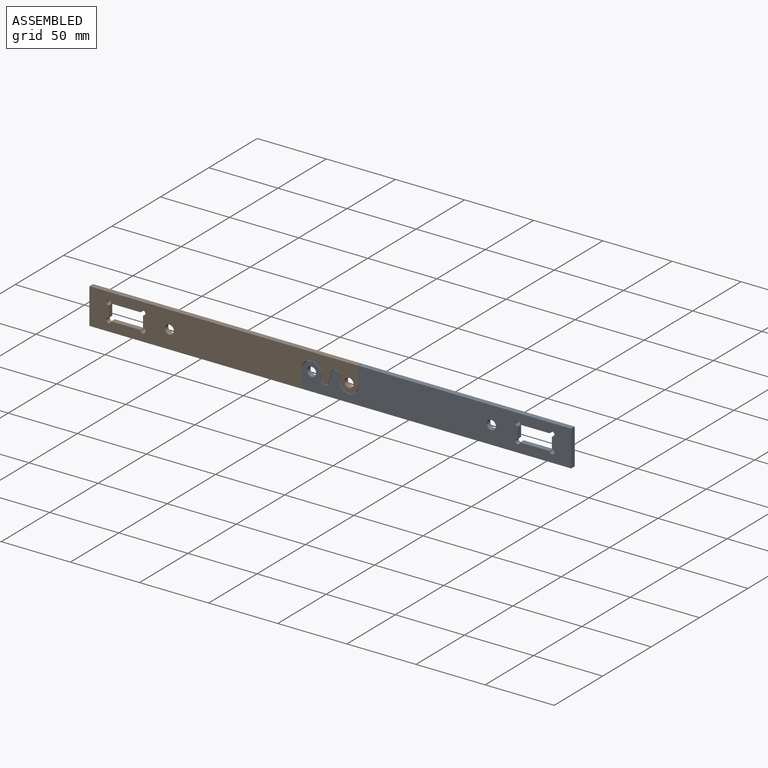
[diagram: assembled view]
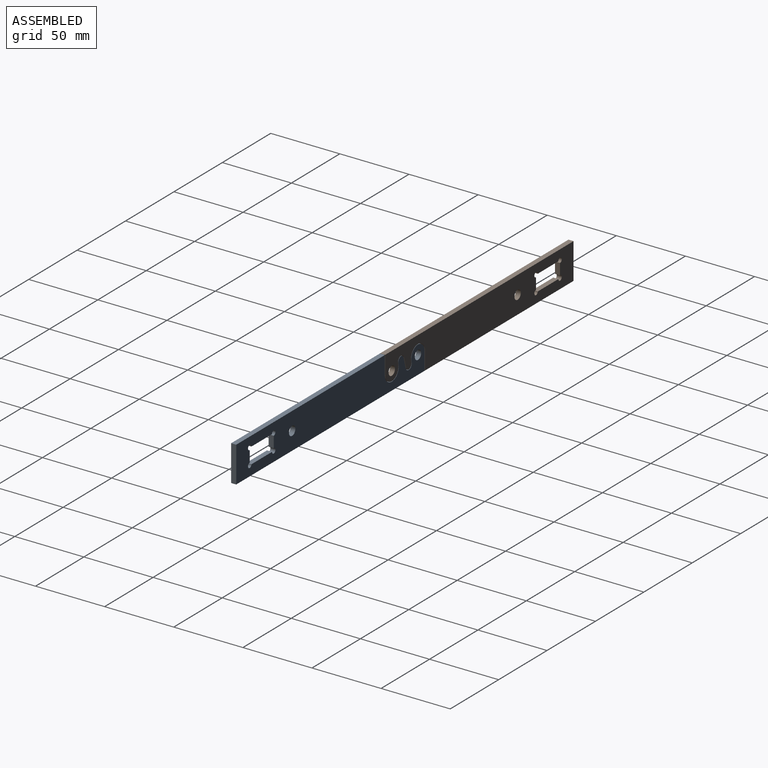
[diagram: assembled view, second angle]
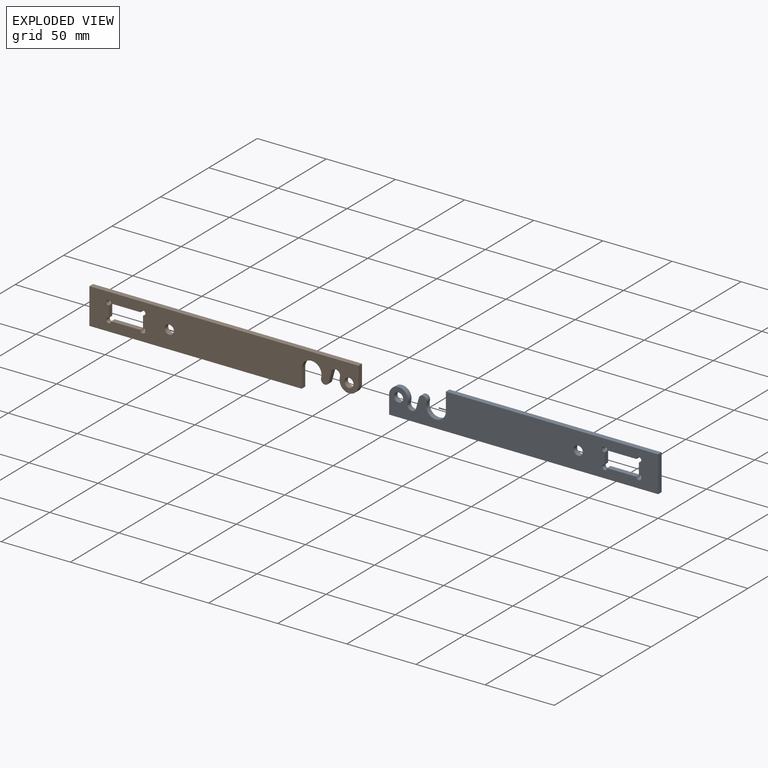
[diagram: exploded view]
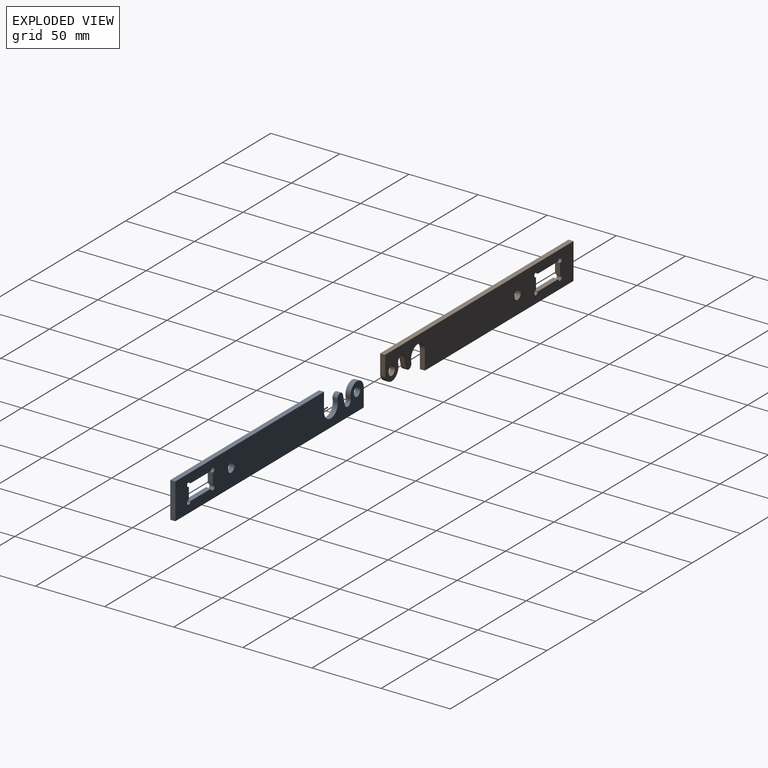
[diagram: exploded view, second angle]
ASSEMBLY  parts=2 mates=2
PART A: 24 faces, bbox 194.6x3.7x26 mm
  f0: plane 153.57x3.65mm, normal (0,0,-1), area 560.5mm2, adj f1,f2,f12,f15
  f1: plane 194.64x26mm, normal (0,-1,0), area 4130.2mm2, adj f0,f3,f4,f5,f6,f7,f8,f9
  f2: plane 194.64x26mm, normal (0,1,0), area 4130.2mm2, adj f0,f3,f4,f5,f6,f7,f8,f9
  f3: plane 194.64x3.65mm, normal (0,0,1), area 710.4mm2, adj f1,f2,f4,f15
  f4: plane 13x3.65mm, normal (1,0,0), area 47.4mm2, adj f1,f2,f3,f5
  f5: cylinder r=6.85mm len=13.7mm, axis (0,1,0), area 82.9mm2, adj f1,f2,f4,f6
  f6: plane 3.65x1.26mm, normal (-0.98,0,0.17), area 4.7mm2, adj f1,f2,f5,f7
  f7: cylinder r=3.15mm len=6.19mm, axis (0,1,0), area 35.1mm2, adj f1,f2,f6,f8
  f8: plane 7.55x3.65mm, normal (0.97,0,-0.26), area 28.5mm2, adj f1,f2,f7,f9
  f9: cylinder r=2.85mm len=5.6mm, axis (0,1,0), area 31.8mm2, adj f1,f2,f8,f10
  f10: plane 3.65x1.26mm, normal (-0.98,0,0.17), area 4.7mm2, adj f1,f2,f9,f11
  f11: cylinder r=7.15mm len=14.3mm, axis (0,1,0), area 86.5mm2, adj f1,f2,f10,f12
  f12: plane 13x3.65mm, normal (1,0,0), area 47.4mm2, adj f0,f1,f2,f11
  f13: cylinder r=3.3mm len=6.6mm, axis (0,1,0), area 75.7mm2, adj f1,f2
  f14: cylinder r=3.3mm len=6.6mm, axis (0,1,0), area 75.7mm2, adj f1,f2
  f15: plane 26x3.65mm, normal (-1,0,0), area 94.9mm2, adj f0,f1,f2,f3
  f16: plane 21.3x3.65mm, normal (0,0,-1), area 77.7mm2, adj f1,f2,f17,f23
  f17: cylinder r=1.75mm len=3.65mm, axis (0,1,0), area 30.1mm2, adj f1,f2,f16,f18
  f18: plane 8.11x3.65mm, normal (1,0,0), area 29.6mm2, adj f1,f2,f17,f19
  f19: cylinder r=1.75mm len=3.65mm, axis (0,1,0), area 30.1mm2, adj f1,f2,f18,f20
  f20: plane 21.3x3.65mm, normal (0,0,1), area 77.7mm2, adj f1,f2,f19,f21
  f21: cylinder r=1.75mm len=3.65mm, axis (0,1,0), area 30.1mm2, adj f1,f2,f20,f22
  f22: plane 8.11x3.65mm, normal (-1,0,0), area 29.6mm2, adj f1,f2,f21,f23
  f23: cylinder r=1.75mm len=3.65mm, axis (0,1,0), area 30.1mm2, adj f1,f2,f16,f22
PART B: same geometry as A
PLACE A rot(axis=(0,1,0),180deg) t=(0,0,258)mm
PLACE B at identity fixed
MATE revolute A.f11 <-> B.f5  axis (0,-1,0) through (13.53,-181.5,129)mm
MATE revolute B.f11 <-> A.f5  axis (0,-1,0) through (-13.53,-181.5,129)mm
